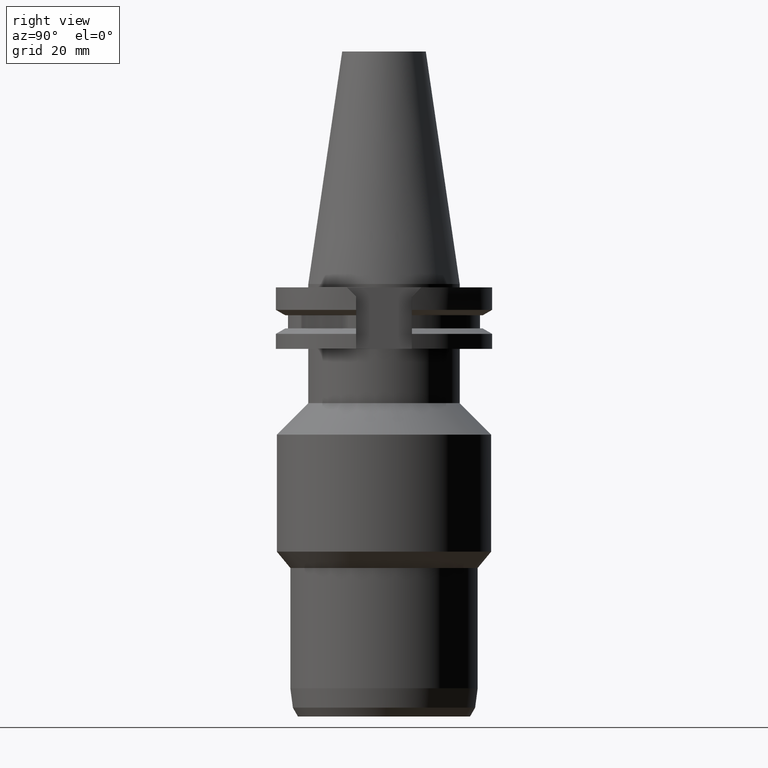
[diagram: clean part render]
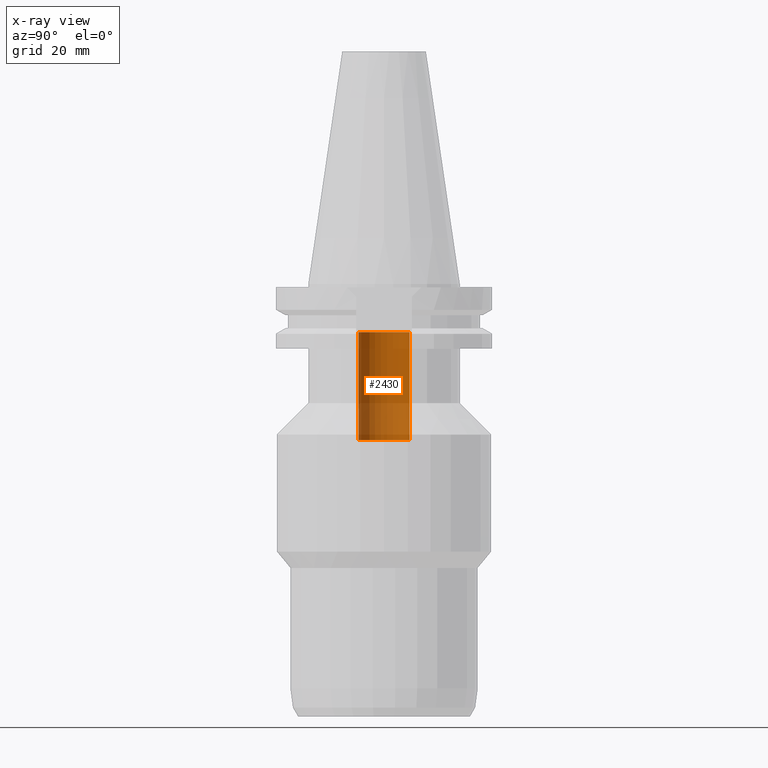
[diagram: x-ray — body ghosted, one internal face saturated and labeled with its STEP entity id]
A machine part, right view, then the same camera in x-ray: the body is ghosted and one INTERNAL B-rep face — a face not visible from any outside direction — is saturated and labeled: STEP entity #2430.
In plain terms, the highlighted cylindrical surface (edge-blend (fillet) strip) has radius 7.5 mm, axis along (0, 0, -1).
Its self-contained STEP definition (entity closure, byte-faithful):
#1150=CARTESIAN_POINT('',(0.E0,2.180024383332E-14,-4.58E1));
#1151=DIRECTION('',(0.E0,0.E0,-1.E0));
#1152=DIRECTION('',(0.E0,-1.E0,0.E0));
#1153=AXIS2_PLACEMENT_3D('',#1150,#1151,#1152);
#1166=DIRECTION('',(0.E0,0.E0,1.E0));
#1167=VECTOR('',#1166,3.161897281039E1);
#1168=CARTESIAN_POINT('',(0.E0,-7.5E0,-4.58E1));
#1169=LINE('',#1168,#1167);
#1173=DIRECTION('',(0.E0,0.E0,1.E0));
#1174=VECTOR('',#1173,3.161897281039E1);
#1175=CARTESIAN_POINT('',(0.E0,7.5E0,-4.58E1));
#1176=LINE('',#1175,#1174);
#1188=CARTESIAN_POINT('',(0.E0,2.180024383332E-14,-1.418102718961E1));
#1189=DIRECTION('',(0.E0,0.E0,1.E0));
#1190=DIRECTION('',(0.E0,1.E0,0.E0));
#1191=AXIS2_PLACEMENT_3D('',#1188,#1189,#1190);
#1326=CARTESIAN_POINT('',(0.E0,-7.5E0,-1.418102718961E1));
#1327=CARTESIAN_POINT('',(0.E0,7.5E0,-1.418102718961E1));
#1328=VERTEX_POINT('',#1326);
#1329=VERTEX_POINT('',#1327);
#1330=CARTESIAN_POINT('',(0.E0,7.5E0,-4.58E1));
#1331=VERTEX_POINT('',#1330);
#1332=CARTESIAN_POINT('',(0.E0,-7.5E0,-4.58E1));
#1333=VERTEX_POINT('',#1332);
#2416=CARTESIAN_POINT('',(0.E0,2.180024383332E-14,7.80125E1));
#2417=DIRECTION('',(0.E0,0.E0,-1.E0));
#2418=DIRECTION('',(0.E0,-1.E0,0.E0));
#2419=AXIS2_PLACEMENT_3D('',#2416,#2417,#2418);
#2420=CYLINDRICAL_SURFACE('',#2419,7.5E0);
#2422=ORIENTED_EDGE('',*,*,#2421,.F.);
#2423=ORIENTED_EDGE('',*,*,#2409,.F.);
#2425=ORIENTED_EDGE('',*,*,#2424,.T.);
#2427=ORIENTED_EDGE('',*,*,#2426,.F.);
#2428=EDGE_LOOP('',(#2422,#2423,#2425,#2427));
#2429=FACE_OUTER_BOUND('',#2428,.F.);
#1154=CIRCLE('',#1153,7.5E0);
#1192=CIRCLE('',#1191,7.5E0);
#2409=EDGE_CURVE('',#1333,#1331,#1154,.T.);
#2421=EDGE_CURVE('',#1331,#1329,#1176,.T.);
#2424=EDGE_CURVE('',#1333,#1328,#1169,.T.);
#2426=EDGE_CURVE('',#1329,#1328,#1192,.T.);
#2430=ADVANCED_FACE('',(#2429),#2420,.F.);